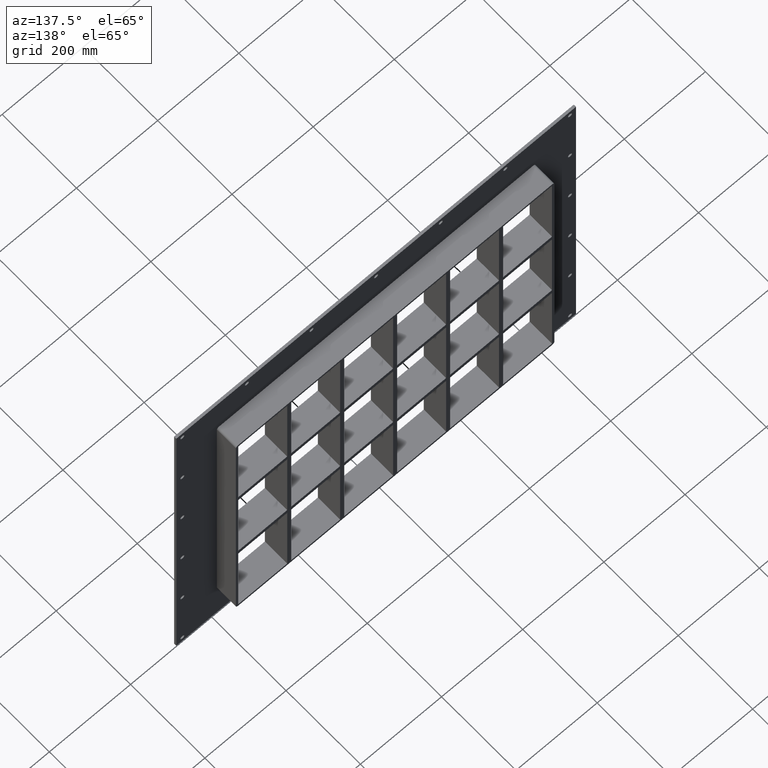
[diagram: clean part render]
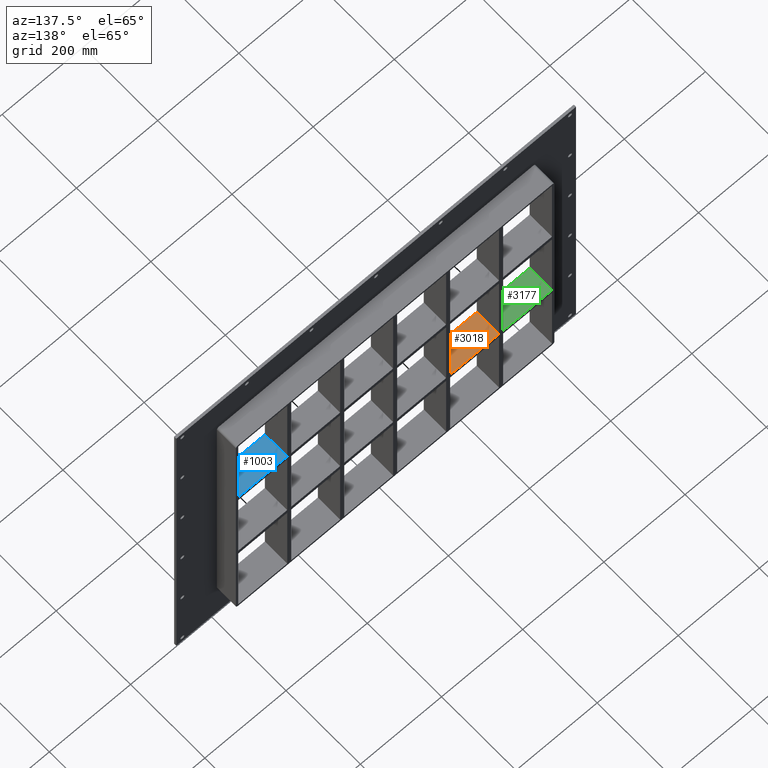
[diagram: same view with three faces highlighted in distinct colors, each labeled with its STEP entity id]
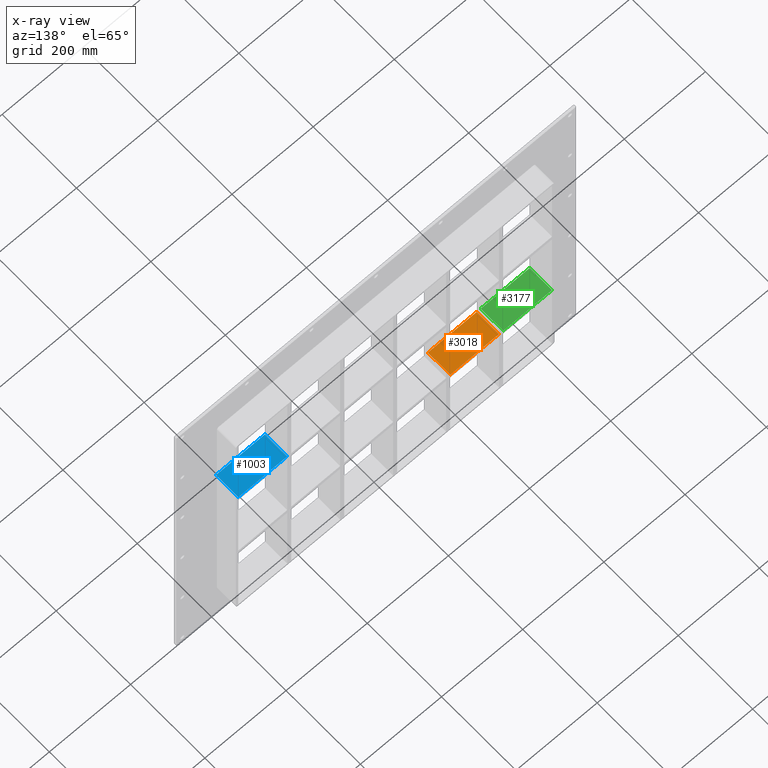
[diagram: x-ray of the same camera — body ghosted, the three highlighted faces saturated]
A machine part, auxiliary view with three faces highlighted in distinct colors.
The next image is the same camera in x-ray (body ghosted, the three faces saturated) — at least one of them is partly hidden behind the body in this view.
Their STEP definitions:

[orange] entity #3018 — the highlighted planar face has unit normal (0, 0, 1).
#1840=CARTESIAN_POINT('',(-256.00000000000364,57.0,-109.00000000000006));
#1841=VERTEX_POINT('',#1840);
#1848=CARTESIAN_POINT('',(-135.50000000000136,57.0,-109.00000000000006));
#1849=VERTEX_POINT('',#1848);
#1850=CARTESIAN_POINT('',(-256.00000000000364,57.0,-109.00000000000006));
#1851=DIRECTION('',(1.0,0.0,0.0));
#1852=VECTOR('',#1851,120.50000000000225);
#1853=LINE('',#1850,#1852);
#1854=EDGE_CURVE('',#1841,#1849,#1853,.T.);
#2417=CARTESIAN_POINT('',(-135.50000000000136,-3.0,-109.00000000000006));
#2418=VERTEX_POINT('',#2417);
#2419=CARTESIAN_POINT('',(-135.50000000000142,-3.0,-109.00000000000006));
#2420=DIRECTION('',(0.0,1.0,0.0));
#2421=VECTOR('',#2420,60.0);
#2422=LINE('',#2419,#2421);
#2423=EDGE_CURVE('',#2418,#1849,#2422,.T.);
#2750=CARTESIAN_POINT('',(-256.00000000000364,-3.0,-109.00000000000006));
#2751=VERTEX_POINT('',#2750);
#2752=CARTESIAN_POINT('',(-256.00000000000364,-3.0,-109.00000000000006));
#2753=DIRECTION('',(1.0,0.0,0.0));
#2754=VECTOR('',#2753,120.50000000000225);
#2755=LINE('',#2752,#2754);
#2756=EDGE_CURVE('',#2751,#2418,#2755,.T.);
#3002=CARTESIAN_POINT('',(-386.49999999999977,-3.0,-109.00000000000006));
#3003=DIRECTION('',(0.0,0.0,1.0));
#3004=DIRECTION('',(1.0,0.0,0.0));
#3005=AXIS2_PLACEMENT_3D('',#3002,#3003,#3004);
#3006=PLANE('',#3005);
#3007=ORIENTED_EDGE('',*,*,#2423,.T.);
#3008=ORIENTED_EDGE('',*,*,#1854,.F.);
#3009=CARTESIAN_POINT('',(-256.00000000000364,-3.0,-109.00000000000006));
#3010=DIRECTION('',(0.0,1.0,0.0));
#3011=VECTOR('',#3010,60.0);
#3012=LINE('',#3009,#3011);
#3013=EDGE_CURVE('',#2751,#1841,#3012,.T.);
#3014=ORIENTED_EDGE('',*,*,#3013,.F.);
#3015=ORIENTED_EDGE('',*,*,#2756,.T.);
#3016=EDGE_LOOP('',(#3007,#3008,#3014,#3015));
#3017=FACE_OUTER_BOUND('',#3016,.T.);
#3018=ADVANCED_FACE('',(#3017),#3006,.T.);

[blue] entity #1003 — the highlighted planar face has unit normal (0, 0, 1).
#964=CARTESIAN_POINT('',(-386.49999999999977,-3.0,120.99999999999994));
#965=DIRECTION('',(0.0,0.0,1.0));
#966=DIRECTION('',(1.0,0.0,0.0));
#967=AXIS2_PLACEMENT_3D('',#964,#965,#966);
#968=PLANE('',#967);
#969=CARTESIAN_POINT('',(265.99999999999636,-3.0,120.99999999999994));
#970=VERTEX_POINT('',#969);
#971=CARTESIAN_POINT('',(265.99999999999636,57.0,120.99999999999994));
#972=VERTEX_POINT('',#971);
#973=CARTESIAN_POINT('',(265.99999999999636,-3.0,120.99999999999994));
#974=DIRECTION('',(0.0,1.0,0.0));
#975=VECTOR('',#974,60.0);
#976=LINE('',#973,#975);
#977=EDGE_CURVE('',#970,#972,#976,.T.);
#978=ORIENTED_EDGE('',*,*,#977,.F.);
#979=CARTESIAN_POINT('',(386.5,-3.0,120.99999999999994));
#980=VERTEX_POINT('',#979);
#981=CARTESIAN_POINT('',(265.99999999999636,-3.0,120.99999999999994));
#982=DIRECTION('',(1.0,0.0,0.0));
#983=VECTOR('',#982,120.50000000000364);
#984=LINE('',#981,#983);
#985=EDGE_CURVE('',#970,#980,#984,.T.);
#986=ORIENTED_EDGE('',*,*,#985,.T.);
#987=CARTESIAN_POINT('',(386.50000000000006,57.0,120.99999999999994));
#988=VERTEX_POINT('',#987);
#989=CARTESIAN_POINT('',(386.50000000000006,57.000000000000007,120.99999999999994));
#990=DIRECTION('',(0.0,-1.0,0.0));
#991=VECTOR('',#990,60.000000000000007);
#992=LINE('',#989,#991);
#993=EDGE_CURVE('',#988,#980,#992,.T.);
#994=ORIENTED_EDGE('',*,*,#993,.F.);
#995=CARTESIAN_POINT('',(265.99999999999636,57.0,120.99999999999994));
#996=DIRECTION('',(1.0,0.0,0.0));
#997=VECTOR('',#996,120.50000000000364);
#998=LINE('',#995,#997);
#999=EDGE_CURVE('',#972,#988,#998,.T.);
#1000=ORIENTED_EDGE('',*,*,#999,.F.);
#1001=EDGE_LOOP('',(#978,#986,#994,#1000));
#1002=FACE_OUTER_BOUND('',#1001,.T.);
#1003=ADVANCED_FACE('',(#1002),#968,.T.);

[green] entity #3177 — the highlighted planar face has unit normal (0, 0, 1).
#1542=CARTESIAN_POINT('',(-266.00000000000136,57.0,-109.00000000000006));
#1543=VERTEX_POINT('',#1542);
#1550=CARTESIAN_POINT('',(-266.00000000000136,-3.0,-109.00000000000006));
#1551=VERTEX_POINT('',#1550);
#1552=CARTESIAN_POINT('',(-266.00000000000142,57.0,-109.00000000000006));
#1553=DIRECTION('',(0.0,-1.0,0.0));
#1554=VECTOR('',#1553,60.0);
#1555=LINE('',#1552,#1554);
#1556=EDGE_CURVE('',#1543,#1551,#1555,.T.);
#1673=CARTESIAN_POINT('',(-386.49999999999977,57.0,-109.00000000000006));
#1674=VERTEX_POINT('',#1673);
#1681=CARTESIAN_POINT('',(-386.49999999999977,57.0,-109.00000000000006));
#1682=DIRECTION('',(1.0,0.0,0.0));
#1683=VECTOR('',#1682,120.49999999999841);
#1684=LINE('',#1681,#1683);
#1685=EDGE_CURVE('',#1674,#1543,#1684,.T.);
#2813=CARTESIAN_POINT('',(-386.49999999999977,-3.0,-109.00000000000006));
#2814=VERTEX_POINT('',#2813);
#2815=CARTESIAN_POINT('',(-386.49999999999977,-3.0,-109.00000000000006));
#2816=DIRECTION('',(1.0,0.0,0.0));
#2817=VECTOR('',#2816,120.49999999999841);
#2818=LINE('',#2815,#2817);
#2819=EDGE_CURVE('',#2814,#1551,#2818,.T.);
#3161=CARTESIAN_POINT('',(-386.49999999999977,-3.0,-109.00000000000006));
#3162=DIRECTION('',(0.0,0.0,1.0));
#3163=DIRECTION('',(1.0,0.0,0.0));
#3164=AXIS2_PLACEMENT_3D('',#3161,#3162,#3163);
#3165=PLANE('',#3164);
#3166=ORIENTED_EDGE('',*,*,#1556,.F.);
#3167=ORIENTED_EDGE('',*,*,#1685,.F.);
#3168=CARTESIAN_POINT('',(-386.50000000000006,-3.0,-109.00000000000006));
#3169=DIRECTION('',(0.0,1.0,0.0));
#3170=VECTOR('',#3169,60.000000000000007);
#3171=LINE('',#3168,#3170);
#3172=EDGE_CURVE('',#2814,#1674,#3171,.T.);
#3173=ORIENTED_EDGE('',*,*,#3172,.F.);
#3174=ORIENTED_EDGE('',*,*,#2819,.T.);
#3175=EDGE_LOOP('',(#3166,#3167,#3173,#3174));
#3176=FACE_OUTER_BOUND('',#3175,.T.);
#3177=ADVANCED_FACE('',(#3176),#3165,.T.);